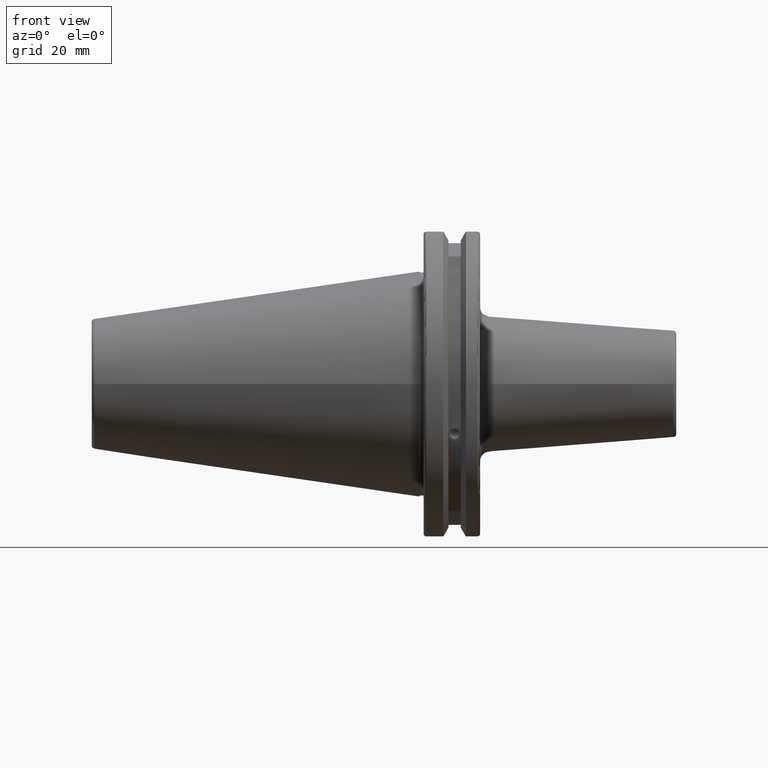
[diagram: clean part render]
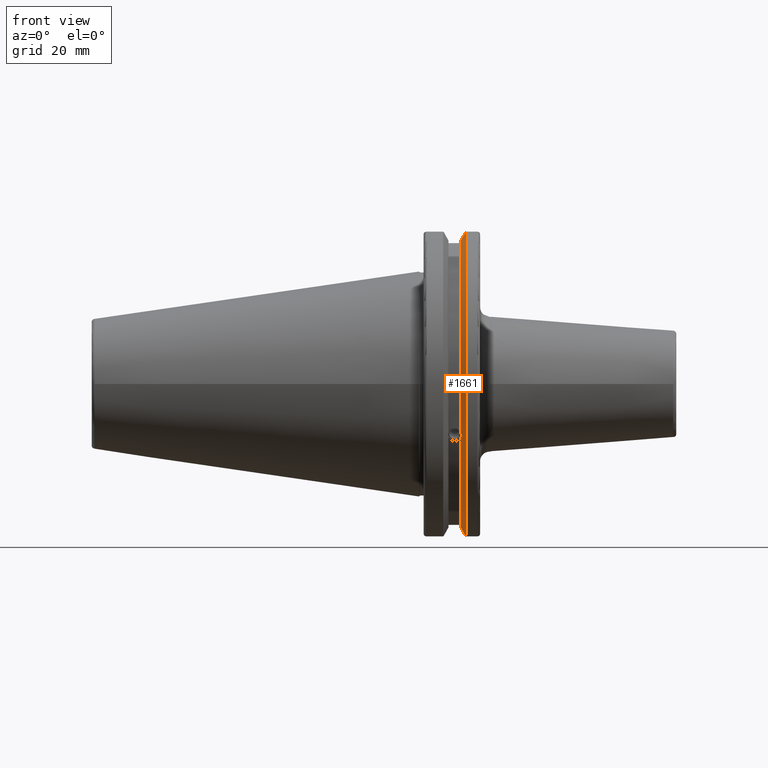
[diagram: same view with one face highlighted and labeled with its STEP entity id]
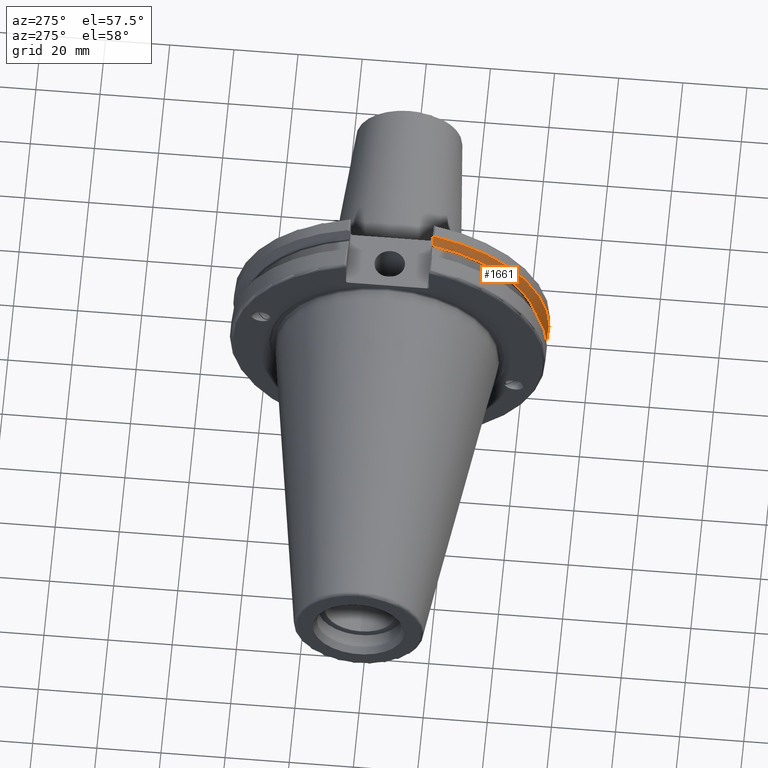
[diagram: same view with one face highlighted and labeled with its STEP entity id]
A machine part, front view. The second image highlights one B-rep face of the part: STEP entity #1661.
A second angle (auxiliary view) of the same face is appended — the face is thin or edge-on in the first view.
In plain terms, the highlighted conical surface has half-angle 60 deg.
Its self-contained STEP definition (entity closure, byte-faithful):
#15=(
BOUNDED_CURVE()
B_SPLINE_CURVE(2,(#2776,#2777,#2778),.UNSPECIFIED.,.F.,.F.)
B_SPLINE_CURVE_WITH_KNOTS((3,3),(0.,0.275823910673374),.UNSPECIFIED.)
CURVE()
GEOMETRIC_REPRESENTATION_ITEM()
RATIONAL_B_SPLINE_CURVE((1.,1.00038235574978,1.00012873636953))
REPRESENTATION_ITEM('')
);
#16=(
BOUNDED_CURVE()
B_SPLINE_CURVE(2,(#2780,#2781,#2782),.UNSPECIFIED.,.F.,.F.)
B_SPLINE_CURVE_WITH_KNOTS((3,3),(0.,0.0648240472896156),.UNSPECIFIED.)
CURVE()
GEOMETRIC_REPRESENTATION_ITEM()
RATIONAL_B_SPLINE_CURVE((1.,1.00011477674884,1.00019140646027))
REPRESENTATION_ITEM('')
);
#17=(
BOUNDED_CURVE()
B_SPLINE_CURVE(2,(#2786,#2787,#2788),.UNSPECIFIED.,.F.,.F.)
B_SPLINE_CURVE_WITH_KNOTS((3,3),(0.325260944932494,0.3900849922222),
 .UNSPECIFIED.)
CURVE()
GEOMETRIC_REPRESENTATION_ITEM()
RATIONAL_B_SPLINE_CURVE((1.00019140645961,1.00011477674844,1.))
REPRESENTATION_ITEM('')
);
#18=(
BOUNDED_CURVE()
B_SPLINE_CURVE(2,(#2790,#2791,#2792),.UNSPECIFIED.,.F.,.F.)
B_SPLINE_CURVE_WITH_KNOTS((3,3),(0.0558332664531015,0.331657177124503),
 .UNSPECIFIED.)
CURVE()
GEOMETRIC_REPRESENTATION_ITEM()
RATIONAL_B_SPLINE_CURVE((1.00012873636668,1.00038235574129,1.))
REPRESENTATION_ITEM('')
);
#42=B_SPLINE_CURVE_WITH_KNOTS('',3,(#2680,#2681,#2682,#2683,#2684,#2685,
#2686,#2687),.UNSPECIFIED.,.F.,.F.,(4,2,2,4),(0.42671286835872,0.441644498666905,
0.480313313223129,0.518982127779353),.UNSPECIFIED.);
#46=B_SPLINE_CURVE_WITH_KNOTS('',3,(#2742,#2743,#2744,#2745,#2746,#2747,
#2748,#2749),.UNSPECIFIED.,.F.,.F.,(4,2,2,4),(0.518982127779353,0.557650942335576,
0.5963197568918,0.611251387199985),.UNSPECIFIED.);
#77=CONICAL_SURFACE('',#1808,47.8172386482472,1.0471975511966);
#380=FACE_OUTER_BOUND('',#475,.T.);
#475=EDGE_LOOP('',(#1234,#1235,#1236,#1237,#1238,#1239,#1240,#1241,#1242));
#592=CIRCLE('',#1809,46.4219772964944);
#593=CIRCLE('',#1810,49.2125);
#594=CIRCLE('',#1811,46.4219772964944);
#708=VERTEX_POINT('',#2677);
#709=VERTEX_POINT('',#2679);
#716=VERTEX_POINT('',#2740);
#724=VERTEX_POINT('',#2773);
#725=VERTEX_POINT('',#2775);
#726=VERTEX_POINT('',#2779);
#727=VERTEX_POINT('',#2783);
#728=VERTEX_POINT('',#2785);
#729=VERTEX_POINT('',#2789);
#903=EDGE_CURVE('',#709,#708,#42,.T.);
#911=EDGE_CURVE('',#708,#716,#46,.T.);
#922=EDGE_CURVE('',#716,#724,#592,.T.);
#923=EDGE_CURVE('',#724,#725,#15,.T.);
#924=EDGE_CURVE('',#726,#725,#16,.T.);
#925=EDGE_CURVE('',#727,#726,#593,.T.);
#926=EDGE_CURVE('',#728,#727,#17,.T.);
#927=EDGE_CURVE('',#728,#729,#18,.T.);
#928=EDGE_CURVE('',#729,#709,#594,.T.);
#1234=ORIENTED_EDGE('',*,*,#903,.T.);
#1235=ORIENTED_EDGE('',*,*,#911,.T.);
#1236=ORIENTED_EDGE('',*,*,#922,.T.);
#1237=ORIENTED_EDGE('',*,*,#923,.T.);
#1238=ORIENTED_EDGE('',*,*,#924,.F.);
#1239=ORIENTED_EDGE('',*,*,#925,.F.);
#1240=ORIENTED_EDGE('',*,*,#926,.F.);
#1241=ORIENTED_EDGE('',*,*,#927,.T.);
#1242=ORIENTED_EDGE('',*,*,#928,.T.);
#1661=ADVANCED_FACE('',(#380),#77,.T.);
#1808=AXIS2_PLACEMENT_3D('',#2772,#2092,#2093);
#1809=AXIS2_PLACEMENT_3D('',#2774,#2094,#2095);
#1810=AXIS2_PLACEMENT_3D('',#2784,#2096,#2097);
#1811=AXIS2_PLACEMENT_3D('',#2793,#2098,#2099);
#2092=DIRECTION('center_axis',(1.,0.,0.));
#2093=DIRECTION('ref_axis',(0.,-1.,-1.22464679914735E-16));
#2094=DIRECTION('center_axis',(1.,0.,0.));
#2095=DIRECTION('ref_axis',(0.,0.,-1.));
#2096=DIRECTION('center_axis',(1.,0.,0.));
#2097=DIRECTION('ref_axis',(0.,0.,-1.));
#2098=DIRECTION('center_axis',(1.,0.,0.));
#2099=DIRECTION('ref_axis',(0.,0.,-1.));
#2677=CARTESIAN_POINT('',(13.2341,-43.923494649906,-15.9868446375166));
#2679=CARTESIAN_POINT('',(13.0491,-43.9096390749305,-15.0646464421033));
#2680=CARTESIAN_POINT('Ctrl Pts',(13.0491,-43.9096390749305,-15.0646464421033));
#2681=CARTESIAN_POINT('Ctrl Pts',(13.0660815609661,-43.9250360001461,-15.1104047527575));
#2682=CARTESIAN_POINT('Ctrl Pts',(13.0821132459668,-43.9385582852181,-15.1564111356409));
#2683=CARTESIAN_POINT('Ctrl Pts',(13.1358132615496,-43.9797830409459,-15.3217566390708));
#2684=CARTESIAN_POINT('Ctrl Pts',(13.1719838933644,-43.9989016655819,-15.4570249042868));
#2685=CARTESIAN_POINT('Ctrl Pts',(13.2212913174802,-43.9931221605126,-15.7289849146254));
#2686=CARTESIAN_POINT('Ctrl Pts',(13.2341,-43.9675796948952,-15.8657219718732));
#2687=CARTESIAN_POINT('Ctrl Pts',(13.2341,-43.923494649906,-15.9868446375166));
#2740=CARTESIAN_POINT('',(13.0491,-43.3201030900029,-16.6843832486479));
#2742=CARTESIAN_POINT('Ctrl Pts',(13.2341,-43.923494649906,-15.9868446375166));
#2743=CARTESIAN_POINT('Ctrl Pts',(13.2341,-43.8794096049169,-16.10796730316));
#2744=CARTESIAN_POINT('Ctrl Pts',(13.2212913174802,-43.8110833825827,-16.2291323464527));
#2745=CARTESIAN_POINT('Ctrl Pts',(13.1719838933644,-43.6406982153492,-16.441180795372));
#2746=CARTESIAN_POINT('Ctrl Pts',(13.1358132615496,-43.5391037343221,-16.5325130832406));
#2747=CARTESIAN_POINT('Ctrl Pts',(13.0821132459668,-43.4012416983557,-16.6326763251437));
#2748=CARTESIAN_POINT('Ctrl Pts',(13.0660815609661,-43.3613106941341,-16.6592273018006));
#2749=CARTESIAN_POINT('Ctrl Pts',(13.0491,-43.3201030900029,-16.6843832486479));
#2772=CARTESIAN_POINT('Origin',(13.8546545170244,0.,0.));
#2773=CARTESIAN_POINT('',(13.0491,-12.95,-44.5791147973604));
#2774=CARTESIAN_POINT('Origin',(13.0491,0.,0.));
#2775=CARTESIAN_POINT('',(14.3818103943757,-12.95,-46.9780755322917));
#2776=CARTESIAN_POINT('Ctrl Pts',(13.0491,-12.95,-44.5791147973604));
#2777=CARTESIAN_POINT('Ctrl Pts',(13.697995509466,-12.95,-45.749496680259));
#2778=CARTESIAN_POINT('Ctrl Pts',(14.3818103943757,-12.95,-46.9780755322917));
#2779=CARTESIAN_POINT('',(14.6602090340487,-13.4317035994433,-47.3440544806494));
#2780=CARTESIAN_POINT('Ctrl Pts',(14.6602090340487,-13.4317035994433,-47.3440544806494));
#2781=CARTESIAN_POINT('Ctrl Pts',(14.5199310333617,-13.1896660169964,-47.1601640966263));
#2782=CARTESIAN_POINT('Ctrl Pts',(14.3818103943757,-12.95,-46.9780755322917));
#2783=CARTESIAN_POINT('',(14.6602090340487,-13.4317035994433,47.3440544806494));
#2784=CARTESIAN_POINT('Origin',(14.6602090340487,0.,0.));
#2785=CARTESIAN_POINT('',(14.3818103943757,-12.95,46.9780755322918));
#2786=CARTESIAN_POINT('Ctrl Pts',(14.3818103943757,-12.95,46.9780755322918));
#2787=CARTESIAN_POINT('Ctrl Pts',(14.5199310333617,-13.1896660169966,47.1601640966264));
#2788=CARTESIAN_POINT('Ctrl Pts',(14.6602090340487,-13.4317035994433,47.3440544806494));
#2789=CARTESIAN_POINT('',(13.0491,-12.95,44.5791147973604));
#2790=CARTESIAN_POINT('Ctrl Pts',(14.3818103943757,-12.95,46.9780755322918));
#2791=CARTESIAN_POINT('Ctrl Pts',(13.6979955094846,-12.95,45.7494966802924));
#2792=CARTESIAN_POINT('Ctrl Pts',(13.0491,-12.95,44.5791147973604));
#2793=CARTESIAN_POINT('Origin',(13.0491,0.,0.));